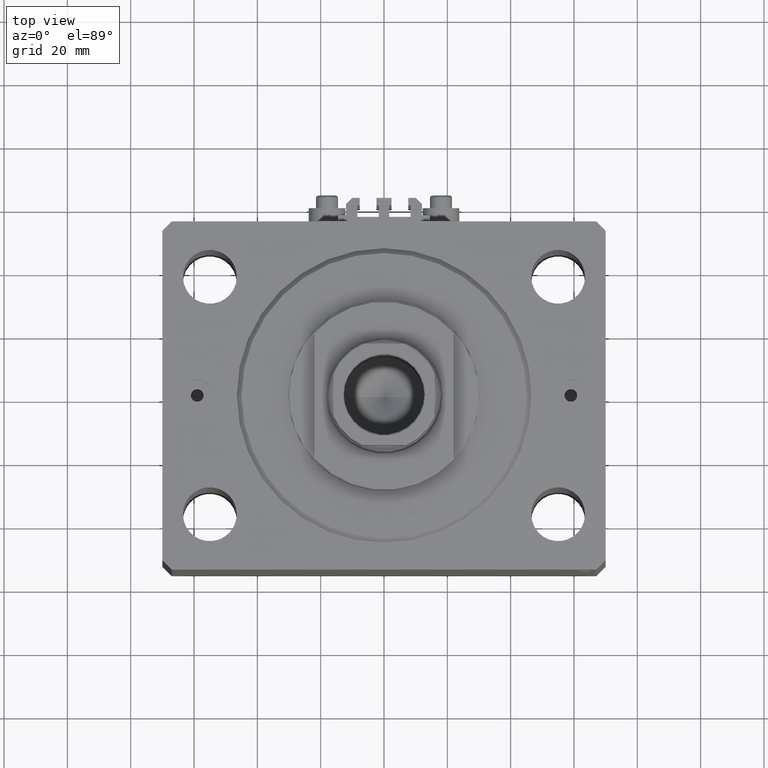
[diagram: clean part render]
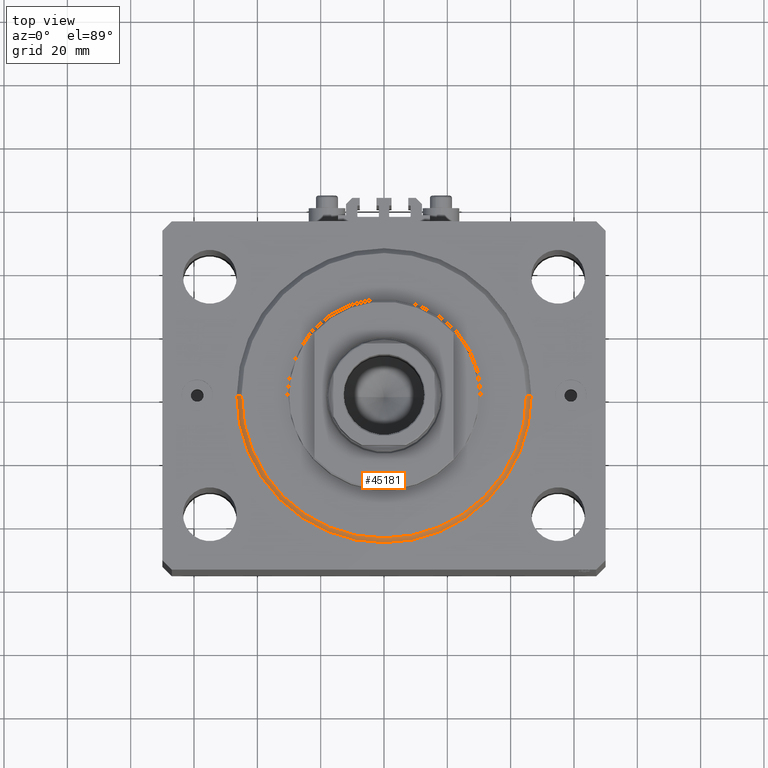
[diagram: same view with one face highlighted and labeled with its STEP entity id]
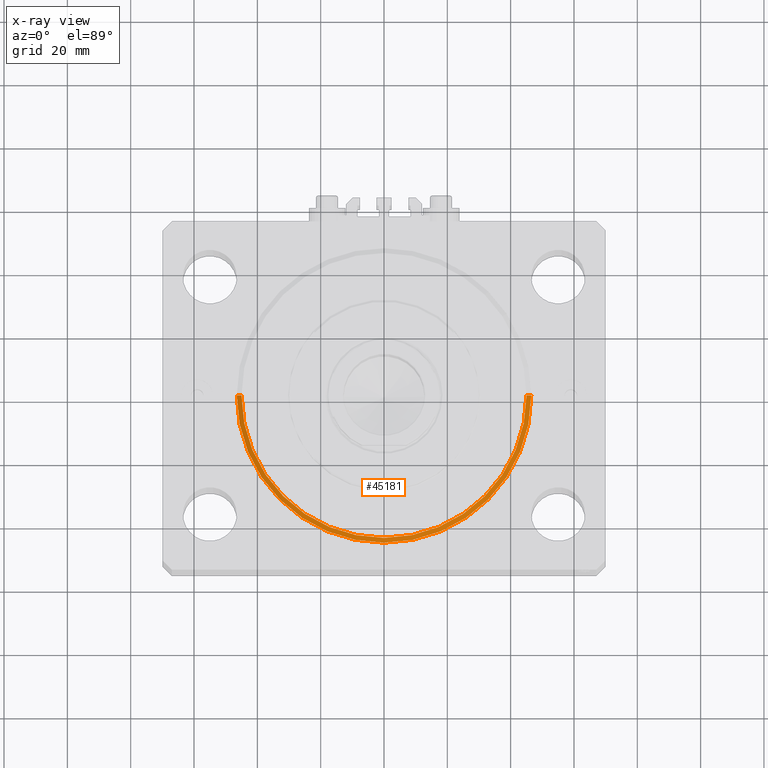
[diagram: x-ray of the same camera — body ghosted, the highlighted face saturated]
A machine part, top view. The second image highlights one B-rep face of the part: STEP entity #45181.
The next image is the same camera in x-ray: the body ghosted, the highlighted face saturated — about 0% of this face is hidden behind the body in this view.
In plain terms, the highlighted conical surface has half-angle 45 deg.
Its self-contained STEP definition (entity closure, byte-faithful):
#240 = AXIS2_PLACEMENT_3D ( 'NONE', #43251, #25108, #2903 ) ;
#877 = DIRECTION ( 'NONE',  ( 0.7071067811865524577, 0.000000000000000000, 0.7071067811865425767 ) ) ;
#1344 = LINE ( 'NONE', #36711, #45130 ) ;
#2903 = DIRECTION ( 'NONE',  ( 1.000000000000000000, 0.000000000000000000, 0.000000000000000000 ) ) ;
#6484 = LINE ( 'NONE', #23940, #20640 ) ;
#8728 = EDGE_CURVE ( 'NONE', #30940, #20402, #38570, .T. ) ;
#9237 = ORIENTED_EDGE ( 'NONE', *, *, #8728, .F. ) ;
#9729 = FACE_OUTER_BOUND ( 'NONE', #46204, .T. ) ;
#9980 = CARTESIAN_POINT ( 'NONE',  ( -46.50000000000000000, 0.000000000000000000, 1.499999999999980460 ) ) ;
#11101 = AXIS2_PLACEMENT_3D ( 'NONE', #23908, #19385, #37767 ) ;
#12179 = VERTEX_POINT ( 'NONE', #9980 ) ;
#14705 = ORIENTED_EDGE ( 'NONE', *, *, #29222, .F. ) ;
#14919 = CARTESIAN_POINT ( 'NONE',  ( 0.000000000000000000, 0.000000000000000000, 1.499999999999980460 ) ) ;
#15138 = ORIENTED_EDGE ( 'NONE', *, *, #40963, .T. ) ;
#19385 = DIRECTION ( 'NONE',  ( -0.000000000000000000, -0.000000000000000000, -1.000000000000000000 ) ) ;
#20402 = VERTEX_POINT ( 'NONE', #31752 ) ;
#20640 = VECTOR ( 'NONE', #24641, 1000.000000000000114 ) ;
#23908 = CARTESIAN_POINT ( 'NONE',  ( 0.000000000000000000, 0.000000000000000000, 0.000000000000000000 ) ) ;
#23940 = CARTESIAN_POINT ( 'NONE',  ( -46.50000000000000000, 5.694607616035192278E-15, 1.499999999999980460 ) ) ;
#24076 = DIRECTION ( 'NONE',  ( -0.000000000000000000, -0.000000000000000000, 1.000000000000000000 ) ) ;
#24641 = DIRECTION ( 'NONE',  ( -0.7071067811865524577, 8.659560562354993255E-17, 0.7071067811865425767 ) ) ;
#25108 = DIRECTION ( 'NONE',  ( -0.000000000000000000, -0.000000000000000000, 1.000000000000000000 ) ) ;
#25177 = EDGE_CURVE ( 'NONE', #20402, #12179, #6484, .T. ) ;
#25652 = DIRECTION ( 'NONE',  ( 1.000000000000000000, 0.000000000000000000, 0.000000000000000000 ) ) ;
#26926 = CONICAL_SURFACE ( 'NONE', #41412, 46.50000000000000000, 0.7853981633974552734 ) ;
#29222 = EDGE_CURVE ( 'NONE', #12179, #38349, #32253, .T. ) ;
#30636 = CARTESIAN_POINT ( 'NONE',  ( 46.50000000000000000, 5.694607616035192278E-15, 1.499999999999980460 ) ) ;
#30940 = VERTEX_POINT ( 'NONE', #46153 ) ;
#31752 = CARTESIAN_POINT ( 'NONE',  ( -45.00000000000000000, 5.602759106099140917E-15, 0.000000000000000000 ) ) ;
#32253 = CIRCLE ( 'NONE', #240, 46.50000000000000000 ) ;
#35606 = ORIENTED_EDGE ( 'NONE', *, *, #25177, .F. ) ;
#36711 = CARTESIAN_POINT ( 'NONE',  ( 46.50000000000000000, 0.000000000000000000, 1.499999999999980460 ) ) ;
#37767 = DIRECTION ( 'NONE',  ( 1.000000000000000000, 0.000000000000000000, 0.000000000000000000 ) ) ;
#38349 = VERTEX_POINT ( 'NONE', #30636 ) ;
#38570 = CIRCLE ( 'NONE', #11101, 45.00000000000000000 ) ;
#40963 = EDGE_CURVE ( 'NONE', #30940, #38349, #1344, .T. ) ;
#41412 = AXIS2_PLACEMENT_3D ( 'NONE', #14919, #24076, #25652 ) ;
#43251 = CARTESIAN_POINT ( 'NONE',  ( 0.000000000000000000, 0.000000000000000000, 1.499999999999980460 ) ) ;
#45130 = VECTOR ( 'NONE', #877, 1000.000000000000114 ) ;
#45181 = ADVANCED_FACE ( 'NONE', ( #9729 ), #26926, .T. ) ;
#46153 = CARTESIAN_POINT ( 'NONE',  ( 45.00000000000000000, 0.000000000000000000, 0.000000000000000000 ) ) ;
#46204 = EDGE_LOOP ( 'NONE', ( #35606, #9237, #15138, #14705 ) ) ;